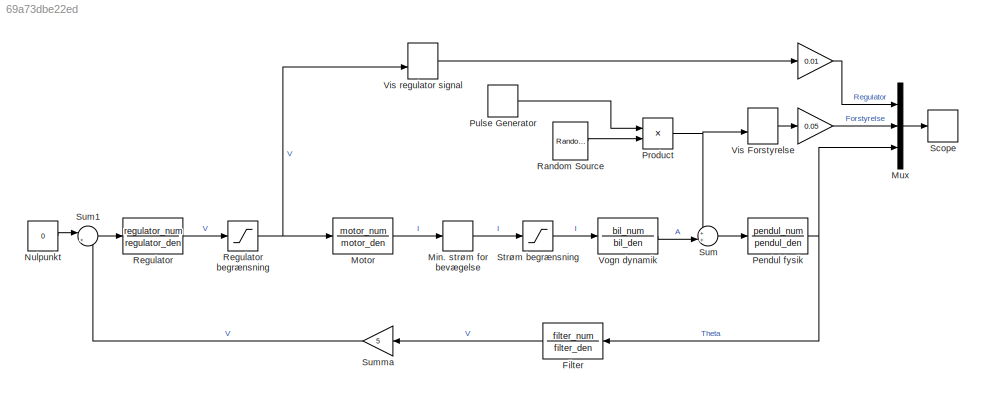
MODEL slx_69a73dbe22ed
KIND model
CONFIG AbsTol = auto
CONFIG FixedStep = auto
CONFIG MaxStep = auto
CONFIG MinStep = auto
CONFIG RelTol = 1e-3
CONFIG SampleTimeConstraint = Unconstrained
CONFIG Solver = ode45
CONFIG SolverMode = Auto
CONFIG SolverName = ode45
CONFIG StartTime = 0.0
CONFIG StopTime = 15
BLOCK [Gain]  
  Gain = 0.05
  OutDataTypeStr = Inherit: Inherit via internal rule
  ParamDataTypeStr = Inherit: Inherit via internal rule
  SaturateOnIntegerOverflow = off
BLOCK [Gain]   
  Gain = 0.01
  OutDataTypeStr = Inherit: Inherit via internal rule
  ParamDataTypeStr = Inherit: Inherit via internal rule
  SaturateOnIntegerOverflow = off
BLOCK [TransferFcn] Filter 
  Denominator = filter_den
  Numerator = filter_num
BLOCK [DeadZone] Min. strøm for bevægelse
  LowerValue = -1
  UpperValue = 1
BLOCK [TransferFcn] Motor
  Denominator = motor_den
  Numerator = motor_num
BLOCK [Mux] Mux
  DisplayOption = bar
  Inputs = 3
  Ports = [3, 1]
BLOCK [Constant] Nulpunkt
  Value = 0
BLOCK [TransferFcn] Pendul fysik
  Denominator = pendul_den
  Numerator = pendul_num
BLOCK [Product] Product
  InputSameDT = off
  OutDataTypeStr = Inherit: Inherit via internal rule
  Ports = [2, 1]
  RndMeth = Floor
  SaturateOnIntegerOverflow = off
BLOCK [DiscretePulseGenerator] Pulse Generator
  Ports = [0, 1]
  PulseType = Time based
  PulseWidth = 5
BLOCK [Reference] Random Source  REF=dspsrcs4/Random
Source
  CltLength = 12
  DataType = Double
  IsInherit = off
  MaxVal = 1
  MeanVal = 0
  MinVal = -1
  NormMethod = Ziggurat
  OutComplex = Real
  Ports = [0, 1]
  RepMode = Not repeatable
  SampFrame = 1
  SampMode = Discrete
  SampTime = 1
  SourceBlock = dspsrcs4/Random\nSource
  SourceType = Random Source
  SrcType = Uniform
  UserDataPersistent = on
  VarVal = 1
  rawSeed = 1
BLOCK [TransferFcn] Regulator
  Denominator = regulator_den
  Numerator = regulator_num
BLOCK [Saturate] Regulator begrænsning
  InputPortMap = u0
  LowerLimit = -6
  Ports = [1, 1]
  UpperLimit = 6
BLOCK [TimeScope] Scope
  NumInputPorts = 1
  Ports = [1]
  ScopeSpecificationString = Simulink.scopes.TimeScopeBlockCfg('CurrentConfiguration', extmgr.ConfigurationSet(extmgr.Configuration('Core','General UI',true,'FigureColor',[1 1 1]),extmgr.Configuration('Core','Source UI',true),extmgr.Configuration('Sources','WiredSimulink',true,'DataLoggingDecimation','1','DataLoggingDecimateData',true,'DataLoggingSaveFormat','Array'),extmgr.Configuration('Visuals','Time Domain',true,'Serializ...<+2023ch>
BLOCK [Saturate] Strøm begrænsning
  InputPortMap = u0
  LowerLimit = -1.5
  Ports = [1, 1]
  UpperLimit = 1.5
BLOCK [Sum] Sum
  IconShape = round
  InputSameDT = off
  Inputs = ++|
  OutDataTypeStr = Inherit: Inherit via internal rule
  Ports = [2, 1]
  SaturateOnIntegerOverflow = off
BLOCK [Sum] Sum1
  IconShape = round
  InputSameDT = off
  Inputs = |+-
  OutDataTypeStr = Inherit: Inherit via internal rule
  Ports = [2, 1]
  SaturateOnIntegerOverflow = off
BLOCK [Gain] Summa
  Gain = 5
  OutDataTypeStr = Inherit: Inherit via internal rule
  ParamDataTypeStr = Inherit: Inherit via internal rule
  SaturateOnIntegerOverflow = off
BLOCK [ManualSwitch] Vis Forstyrelse
  CurrentSetting = 0
BLOCK [ManualSwitch] Vis regulator signal
  CurrentSetting = 0
BLOCK [TransferFcn] Vogn dynamik
  Denominator = bil_den
  Numerator = bil_num
LINE   :1 -> Mux:1
LINE  :1 -> Mux:2
LINE Filter :1 -> Summa:1
LINE Min. strøm for bevægelse:1 -> Strøm begrænsning:1
LINE Motor:1 -> Min. strøm for bevægelse:1
LINE Mux:1 -> Scope:1
LINE Nulpunkt:1 -> Sum1:1
NET Pendul fysik:1 -> Filter :1, Mux:3
NET Product:1 -> Sum:1, Vis Forstyrelse:2
LINE Pulse Generator:1 -> Product:1
LINE Random Source:1 -> Product:2
NET Regulator begrænsning:1 -> Motor:1, Vis regulator signal:2
LINE Regulator:1 -> Regulator begrænsning:1
LINE Strøm begrænsning:1 -> Vogn dynamik:1
LINE Sum1:1 -> Regulator:1
LINE Sum:1 -> Pendul fysik:1
LINE Summa:1 -> Sum1:2
LINE Vis Forstyrelse:1 ->  :1
LINE Vis regulator signal:1 ->   :1
LINE Vogn dynamik:1 -> Sum:2
note: NET lines group one-source signal fan-out (src -> all destinations, sorted); 1:1 wires keep LINE
